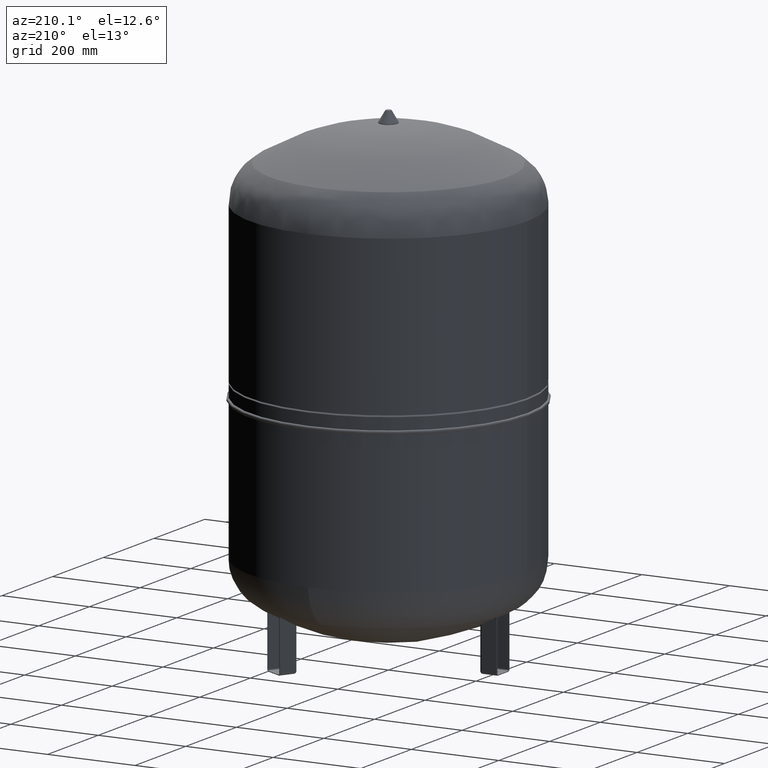
[diagram: clean part render]
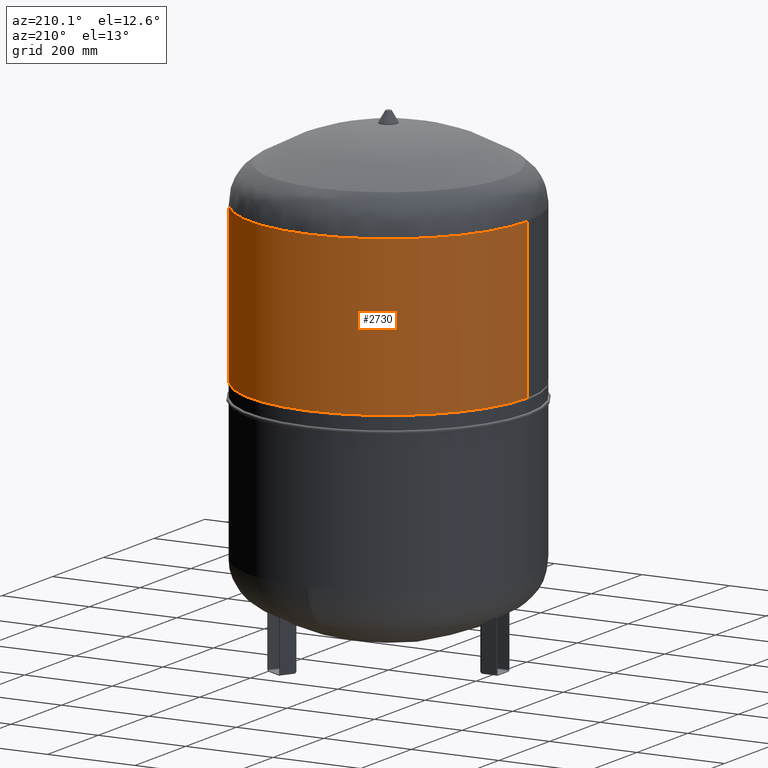
[diagram: same view with one face highlighted and labeled with its STEP entity id]
A machine part, auxiliary view. The second image highlights one B-rep face of the part: STEP entity #2730.
In plain terms, the highlighted cylindrical surface (partial cylindrical patch) has radius 317 mm, axis along (0, 0, 1).
Its self-contained STEP definition (entity closure, byte-faithful):
#2428=CARTESIAN_POINT('',(317.0,0.0,922.999999999999890));
#2429=VERTEX_POINT('',#2428);
#2430=CARTESIAN_POINT('',(316.999999999999940,0.0,565.0));
#2431=VERTEX_POINT('',#2430);
#2432=CARTESIAN_POINT('',(317.0,0.0,922.999999999999890));
#2433=DIRECTION('',(0.0,0.0,-1.0));
#2434=VECTOR('',#2433,357.999999999999890);
#2435=LINE('',#2432,#2434);
#2436=EDGE_CURVE('',#2429,#2431,#2435,.T.);
#2438=CARTESIAN_POINT('',(-317.0,-3.882002E-014,922.999999999999890));
#2439=VERTEX_POINT('',#2438);
#2447=CARTESIAN_POINT('',(-317.0,-3.882002E-014,565.0));
#2448=VERTEX_POINT('',#2447);
#2449=CARTESIAN_POINT('',(-317.0,-3.882002E-014,922.999999999999890));
#2450=DIRECTION('',(0.0,0.0,-1.0));
#2451=VECTOR('',#2450,357.999999999999890);
#2452=LINE('',#2449,#2451);
#2453=EDGE_CURVE('',#2439,#2448,#2452,.T.);
#2698=CARTESIAN_POINT('',(0.0,0.0,565.0));
#2699=DIRECTION('',(0.0,0.0,1.0));
#2700=DIRECTION('',(1.0,0.0,0.0));
#2701=AXIS2_PLACEMENT_3D('',#2698,#2699,#2700);
#2702=CIRCLE('',#2701,316.999999999999940);
#2703=EDGE_CURVE('',#2431,#2448,#2702,.T.);
#2713=CARTESIAN_POINT('',(8.343982E-015,0.0,744.0));
#2714=DIRECTION('',(4.661443E-017,0.0,1.0));
#2715=DIRECTION('',(1.0,0.0,0.0));
#2716=AXIS2_PLACEMENT_3D('',#2713,#2714,#2715);
#2717=CYLINDRICAL_SURFACE('',#2716,317.0);
#2718=ORIENTED_EDGE('',*,*,#2436,.T.);
#2719=ORIENTED_EDGE('',*,*,#2703,.T.);
#2720=ORIENTED_EDGE('',*,*,#2453,.F.);
#2721=CARTESIAN_POINT('',(1.668796E-014,0.0,922.999999999999890));
#2722=DIRECTION('',(0.0,0.0,1.0));
#2723=DIRECTION('',(1.0,0.0,0.0));
#2724=AXIS2_PLACEMENT_3D('',#2721,#2722,#2723);
#2725=CIRCLE('',#2724,317.0);
#2726=EDGE_CURVE('',#2429,#2439,#2725,.T.);
#2727=ORIENTED_EDGE('',*,*,#2726,.F.);
#2728=EDGE_LOOP('',(#2718,#2719,#2720,#2727));
#2729=FACE_OUTER_BOUND('',#2728,.T.);
#2730=ADVANCED_FACE('',(#2729),#2717,.T.);